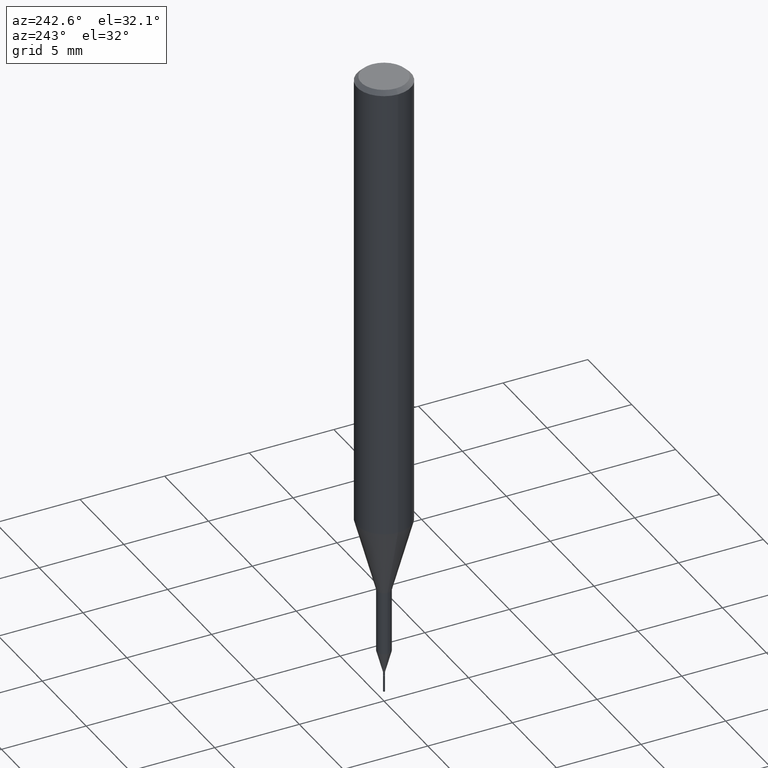
[diagram: clean part render]
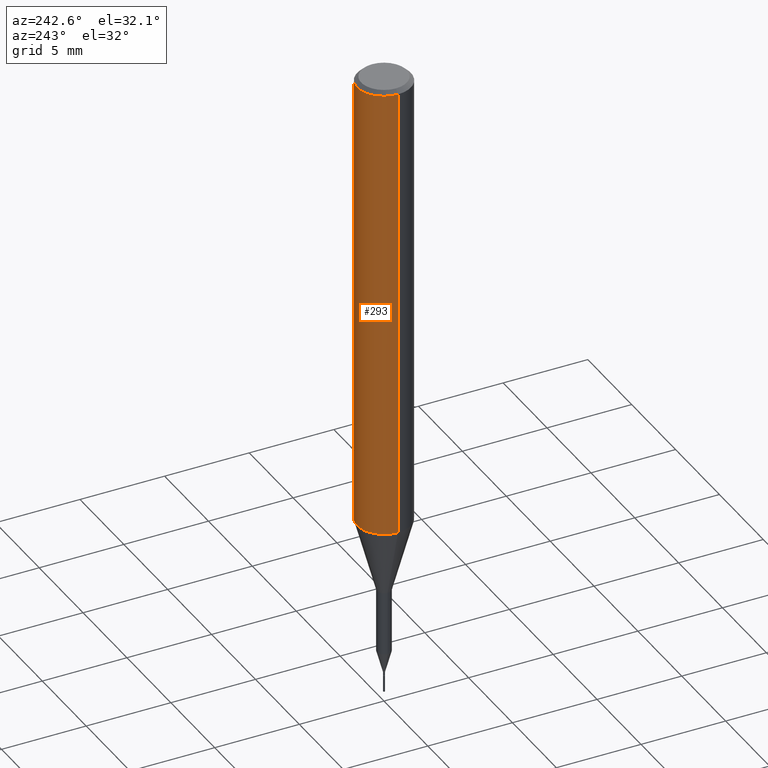
[diagram: same view with one face highlighted and labeled with its STEP entity id]
A machine part, auxiliary view. The second image highlights one B-rep face of the part: STEP entity #293.
In plain terms, the highlighted cylindrical surface (edge-blend (fillet) strip) has radius 1.5875 mm, axis along (-0, 0, 1).
Its self-contained STEP definition (entity closure, byte-faithful):
#3 = DIRECTION ( 'NONE',  ( -2.445468806185136877E-29, 3.491481338843145188E-15, 1.000000000000000000 ) ) ;
#18 = DIRECTION ( 'NONE',  ( -2.445468806185136597E-29, 3.491481338843145583E-15, 1.000000000000000000 ) ) ;
#30 = EDGE_CURVE ( 'NONE', #222, #406, #556, .T. ) ;
#31 = CIRCLE ( 'NONE', #328, 0.06250000000000000000 ) ;
#52 = DIRECTION ( 'NONE',  ( -2.445468806185136597E-29, 3.491481338843145583E-15, 1.000000000000000000 ) ) ;
#88 = EDGE_CURVE ( 'NONE', #164, #406, #31, .T. ) ;
#103 = CARTESIAN_POINT ( 'NONE',  ( 2.292627005798580186E-31, -3.273263755165469568E-17, -0.009375000000000058634 ) ) ;
#150 = VECTOR ( 'NONE', #345, 39.37007874015748143 ) ;
#152 = CARTESIAN_POINT ( 'NONE',  ( -0.06250000000000012490, -3.317607122755211895E-15, -1.077392650149939346 ) ) ;
#157 = CARTESIAN_POINT ( 'NONE',  ( 0.06250000000000000000, -4.691678049070463404E-16, -0.009375000000000058634 ) ) ;
#164 = VERTEX_POINT ( 'NONE', #157 ) ;
#165 = CARTESIAN_POINT ( 'NONE',  ( 0.06250000000000006939, -4.364351673553921624E-16, 3.047610484872463374E-30 ) ) ;
#189 = DIRECTION ( 'NONE',  ( 1.000000000000000000, -6.982962677686266711E-15, 0.000000000000000000 ) ) ;
#209 = LINE ( 'NONE', #165, #150 ) ;
#217 = VERTEX_POINT ( 'NONE', #297 ) ;
#222 = VERTEX_POINT ( 'NONE', #152 ) ;
#240 = DIRECTION ( 'NONE',  ( 1.000000000000000000, -6.982962677686266711E-15, 4.876176775795935793E-29 ) ) ;
#282 = DIRECTION ( 'NONE',  ( -2.445468806185136597E-29, 3.491481338843145583E-15, 1.000000000000000000 ) ) ;
#284 = CYLINDRICAL_SURFACE ( 'NONE', #455, 0.06250000000000006939 ) ;
#286 = EDGE_CURVE ( 'NONE', #217, #164, #209, .T. ) ;
#293 = ADVANCED_FACE ( 'NONE', ( #525 ), #284, .T. ) ;
#297 = CARTESIAN_POINT ( 'NONE',  ( 0.06250000000000012490, -4.198131499960668153E-15, -1.077392650149939346 ) ) ;
#315 = EDGE_LOOP ( 'NONE', ( #396, #478, #584, #413 ) ) ;
#328 = AXIS2_PLACEMENT_3D ( 'NONE', #103, #282, #189 ) ;
#334 = CARTESIAN_POINT ( 'NONE',  ( 0.000000000000000000, 0.000000000000000000, 0.000000000000000000 ) ) ;
#345 = DIRECTION ( 'NONE',  ( -2.445468806185136877E-29, 3.491481338843145188E-15, 1.000000000000000000 ) ) ;
#372 = VECTOR ( 'NONE', #3, 39.37007874015748143 ) ;
#396 = ORIENTED_EDGE ( 'NONE', *, *, #543, .T. ) ;
#406 = VERTEX_POINT ( 'NONE', #537 ) ;
#413 = ORIENTED_EDGE ( 'NONE', *, *, #286, .F. ) ;
#448 = CIRCLE ( 'NONE', #496, 0.06250000000000012490 ) ;
#455 = AXIS2_PLACEMENT_3D ( 'NONE', #334, #18, #240 ) ;
#457 = CARTESIAN_POINT ( 'NONE',  ( 2.634730117954813298E-29, -3.761696332605275695E-15, -1.077392650149939346 ) ) ;
#478 = ORIENTED_EDGE ( 'NONE', *, *, #30, .T. ) ;
#496 = AXIS2_PLACEMENT_3D ( 'NONE', #457, #52, #542 ) ;
#525 = FACE_OUTER_BOUND ( 'NONE', #315, .T. ) ;
#537 = CARTESIAN_POINT ( 'NONE',  ( -0.06250000000000000000, -1.453125275228401137E-15, -0.009375000000000058634 ) ) ;
#542 = DIRECTION ( 'NONE',  ( 1.000000000000000000, -6.982962677686264344E-15, 0.000000000000000000 ) ) ;
#543 = EDGE_CURVE ( 'NONE', #217, #222, #448, .T. ) ;
#544 = CARTESIAN_POINT ( 'NONE',  ( -0.06250000000000006939, 4.440892098500631092E-16, -3.074334431409319267E-30 ) ) ;
#556 = LINE ( 'NONE', #544, #372 ) ;
#584 = ORIENTED_EDGE ( 'NONE', *, *, #88, .F. ) ;